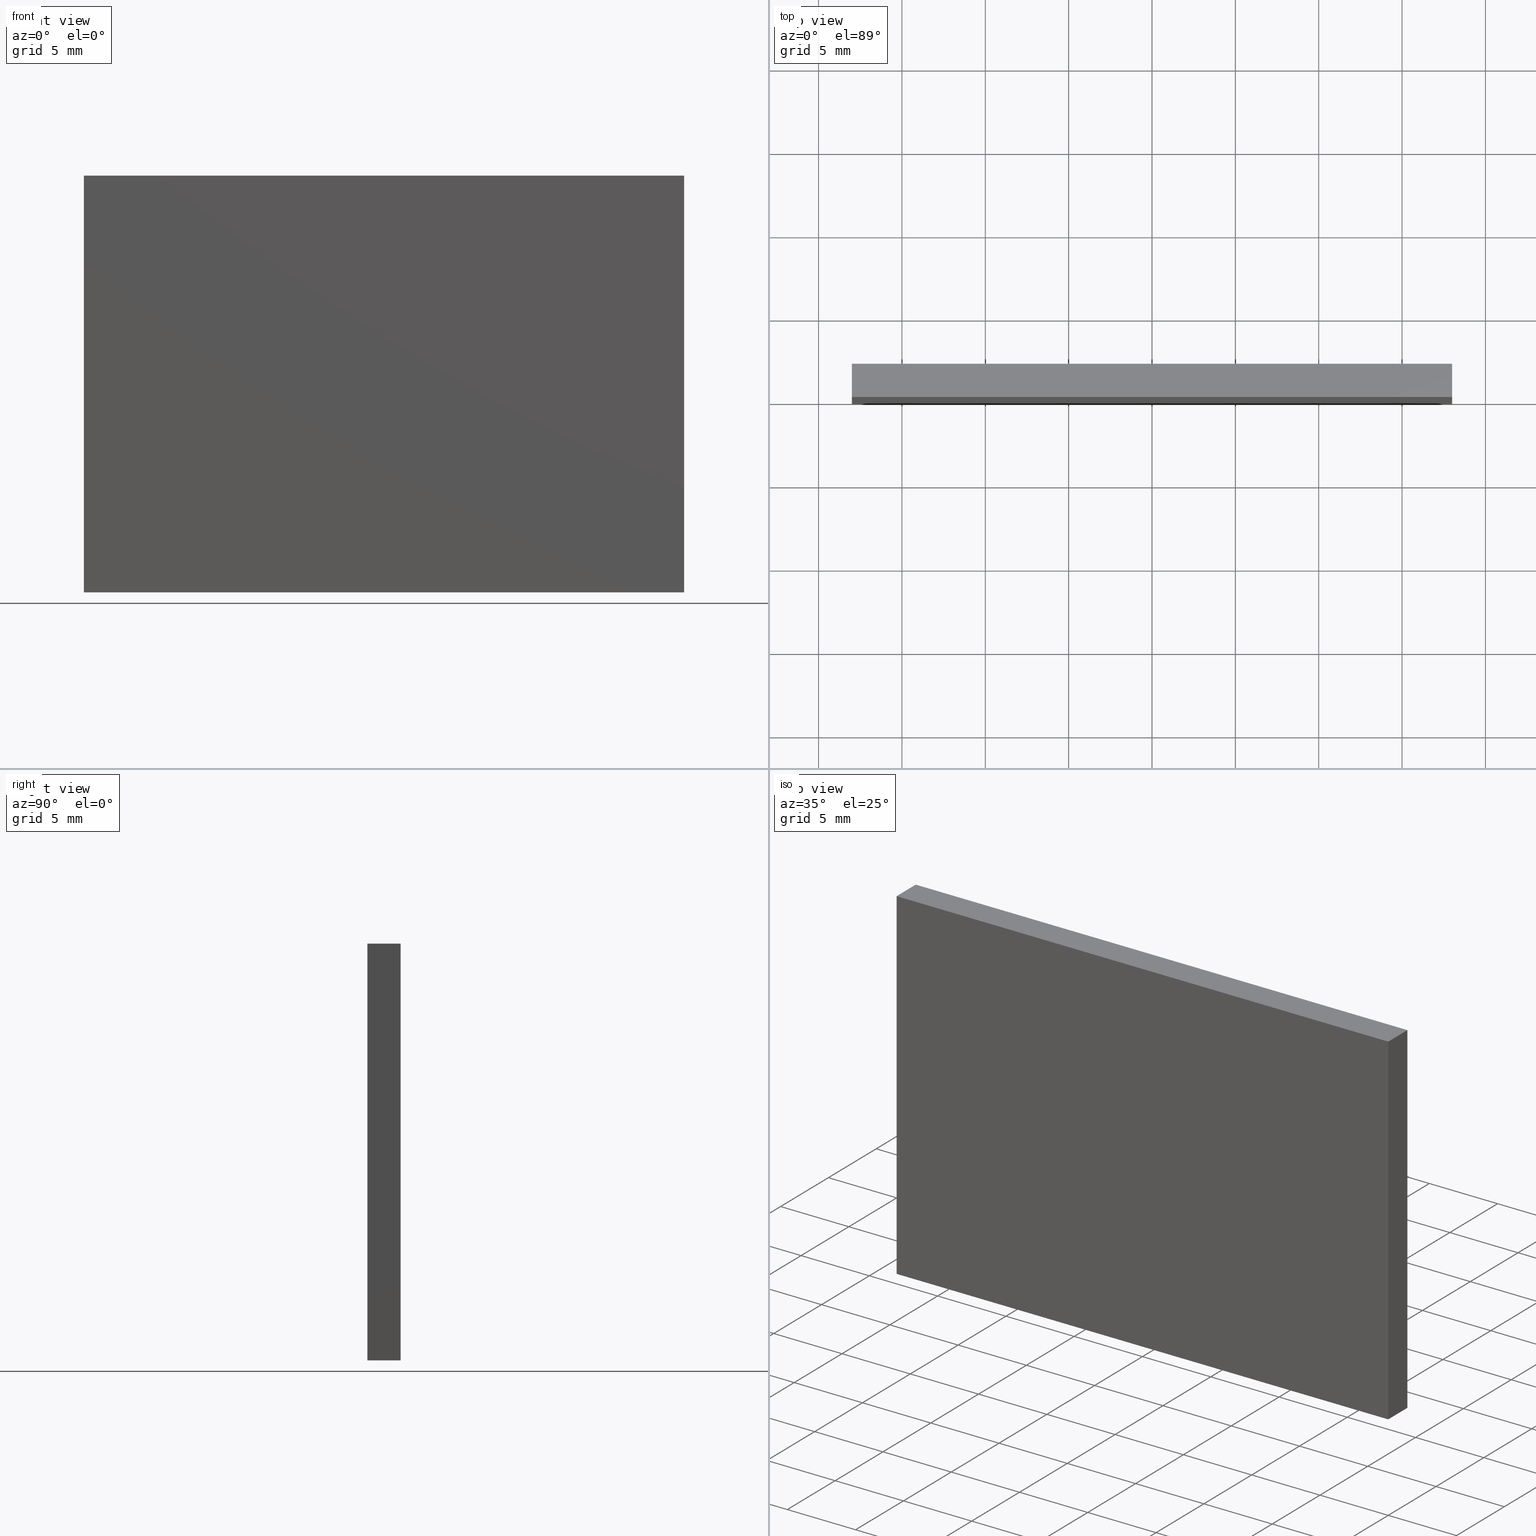
[diagram: canonical four-view strip — front | top / right | iso, engineering-drawing reading convention]
A machine part, canonical four-view strip (front | top / right | iso — engineering-drawing reading convention). The complete STEP part file that produces these views, byte-faithful:
ISO-10303-21;
HEADER;
FILE_DESCRIPTION (( 'STEP AP214' ),
    '1' );
FILE_NAME ('238567.STEP',
    '2019-08-01T02:56:56',
    ( 'user' ),
    ( '΢���й�' ),
    'SwSTEP 2.0',
    'SolidWorks 2016',
    '' );
FILE_SCHEMA (( 'AUTOMOTIVE_DESIGN' ));
ENDSEC;

DATA;
#1 = VECTOR ( 'NONE', #176, 1000.000000000000000 ) ;
#2 = LINE ( 'NONE', #80, #194 ) ;
#3 = EDGE_CURVE ( 'NONE', #185, #20, #189, .T. ) ;
#4 = FACE_OUTER_BOUND ( 'NONE', #90, .T. ) ;
#5 = AXIS2_PLACEMENT_3D ( 'NONE', #34, #13, #134 ) ;
#6 = DIRECTION ( 'NONE',  ( 0.0000000000000000000, 0.0000000000000000000, 1.000000000000000000 ) ) ;
#7 = ORIENTED_EDGE ( 'NONE', *, *, #48, .T. ) ;
#8 = VECTOR ( 'NONE', #115, 1000.000000000000000 ) ;
#9 =( LENGTH_UNIT ( ) NAMED_UNIT ( * ) SI_UNIT ( .MILLI., .METRE. ) );
#10 = CARTESIAN_POINT ( 'NONE',  ( 17.99999999999999600, 0.0000000000000000000, -12.49999999999999800 ) ) ;
#11 = ADVANCED_FACE ( 'NONE', ( #30 ), #172, .F. ) ;
#12 = CARTESIAN_POINT ( 'NONE',  ( -18.00000000000000400, 2.000000000000000000, 12.50000000000000200 ) ) ;
#13 = DIRECTION ( 'NONE',  ( 0.0000000000000000000, 1.000000000000000000, 0.0000000000000000000 ) ) ;
#14 = EDGE_LOOP ( 'NONE', ( #109, #139, #186, #150 ) ) ;
#15 = FACE_OUTER_BOUND ( 'NONE', #17, .T. ) ;
#16 =( GEOMETRIC_REPRESENTATION_CONTEXT ( 3 ) GLOBAL_UNCERTAINTY_ASSIGNED_CONTEXT ( ( #64 ) ) GLOBAL_UNIT_ASSIGNED_CONTEXT ( ( #136, #116, #29 ) ) REPRESENTATION_CONTEXT ( 'NONE', 'WORKASPACE' ) );
#17 = EDGE_LOOP ( 'NONE', ( #97, #35, #65, #167 ) ) ;
#18 = DIRECTION ( 'NONE',  ( 0.0000000000000000000, 0.0000000000000000000, 1.000000000000000000 ) ) ;
#19 =( LENGTH_UNIT ( ) NAMED_UNIT ( * ) SI_UNIT ( .MILLI., .METRE. ) );
#20 = VERTEX_POINT ( 'NONE', #130 ) ;
#21 = VECTOR ( 'NONE', #57, 1000.000000000000000 ) ;
#22 = SURFACE_SIDE_STYLE ('',( #177 ) ) ;
#23 = CARTESIAN_POINT ( 'NONE',  ( -18.00000000000000400, 2.000000000000000000, -12.49999999999999800 ) ) ;
#24 = VECTOR ( 'NONE', #193, 1000.000000000000000 ) ;
#25 = DIRECTION ( 'NONE',  ( 2.775557561562891400E-016, 0.0000000000000000000, 1.000000000000000000 ) ) ;
#26 = STYLED_ITEM ( 'NONE', ( #61 ), #28 ) ;
#27 = ORIENTED_EDGE ( 'NONE', *, *, #58, .T. ) ;
#28 = ADVANCED_BREP_SHAPE_REPRESENTATION ( '238567', ( #95, #42 ), #199 ) ;
#29 =( NAMED_UNIT ( * ) SI_UNIT ( $, .STERADIAN. ) SOLID_ANGLE_UNIT ( ) );
#30 = FACE_OUTER_BOUND ( 'NONE', #31, .T. ) ;
#31 = EDGE_LOOP ( 'NONE', ( #7, #93, #103, #180 ) ) ;
#32 = LINE ( 'NONE', #99, #1 ) ;
#33 = PRESENTATION_LAYER_ASSIGNMENT (  '', '', ( #26 ) ) ;
#34 = CARTESIAN_POINT ( 'NONE',  ( 0.0000000000000000000, 0.0000000000000000000, 0.0000000000000000000 ) ) ;
#35 = ORIENTED_EDGE ( 'NONE', *, *, #121, .F. ) ;
#36 = CARTESIAN_POINT ( 'NONE',  ( 18.00000000000000400, 2.000000000000000000, 12.50000000000000200 ) ) ;
#37 = DIRECTION ( 'NONE',  ( 0.0000000000000000000, 1.000000000000000000, 0.0000000000000000000 ) ) ;
#38 = CARTESIAN_POINT ( 'NONE',  ( 17.99999999999999600, 2.000000000000000000, -12.49999999999999800 ) ) ;
#39 = LINE ( 'NONE', #144, #78 ) ;
#40 = DIRECTION ( 'NONE',  ( -1.000000000000000000, 0.0000000000000000000, 2.775557561562891400E-016 ) ) ;
#41 = COLOUR_RGB ( '',1.000000000000000000, 1.000000000000000000, 1.000000000000000000 ) ;
#42 = AXIS2_PLACEMENT_3D ( 'NONE', #117, #18, #182 ) ;
#43 = EDGE_CURVE ( 'NONE', #68, #104, #161, .T. ) ;
#44 = FILL_AREA_STYLE ('',( #160 ) ) ;
#45 = MECHANICAL_DESIGN_GEOMETRIC_PRESENTATION_REPRESENTATION (  '', ( #26 ), #16 ) ;
#46 = PRODUCT_DEFINITION_CONTEXT ( 'detailed design', #165, 'design' ) ;
#47 = CLOSED_SHELL ( 'NONE', ( #11, #129, #83, #143, #71, #195 ) ) ;
#48 = EDGE_CURVE ( 'NONE', #135, #74, #32, .T. ) ;
#49 = EDGE_CURVE ( 'NONE', #74, #20, #107, .T. ) ;
#50 = DIRECTION ( 'NONE',  ( -1.000000000000000000, 0.0000000000000000000, -0.0000000000000000000 ) ) ;
#51 = FACE_OUTER_BOUND ( 'NONE', #174, .T. ) ;
#52 = DIRECTION ( 'NONE',  ( -0.0000000000000000000, -1.000000000000000000, -0.0000000000000000000 ) ) ;
#53 = VERTEX_POINT ( 'NONE', #128 ) ;
#54 = PRODUCT_DEFINITION ( 'δ֪', '', #63, #46 ) ;
#55 = CARTESIAN_POINT ( 'NONE',  ( 18.00000000000000400, 0.0000000000000000000, 12.50000000000000200 ) ) ;
#56 = DIRECTION ( 'NONE',  ( -1.000000000000000000, -0.0000000000000000000, -0.0000000000000000000 ) ) ;
#57 = DIRECTION ( 'NONE',  ( -1.000000000000000000, -0.0000000000000000000, -0.0000000000000000000 ) ) ;
#58 = EDGE_CURVE ( 'NONE', #20, #60, #39, .T. ) ;
#59 = CARTESIAN_POINT ( 'NONE',  ( -18.00000000000000400, 2.000000000000000000, -12.49999999999999800 ) ) ;
#60 = VERTEX_POINT ( 'NONE', #112 ) ;
#61 = PRESENTATION_STYLE_ASSIGNMENT (( #201 ) ) ;
#62 = ORIENTED_EDGE ( 'NONE', *, *, #43, .T. ) ;
#63 = PRODUCT_DEFINITION_FORMATION_WITH_SPECIFIED_SOURCE ( '�κ�', '', #198, .NOT_KNOWN. ) ;
#64 = UNCERTAINTY_MEASURE_WITH_UNIT (LENGTH_MEASURE( 1.000000000000000100E-005 ), #136, 'distance_accuracy_value', 'NONE');
#65 = ORIENTED_EDGE ( 'NONE', *, *, #58, .F. ) ;
#66 = EDGE_CURVE ( 'NONE', #104, #53, #77, .T. ) ;
#67 = CARTESIAN_POINT ( 'NONE',  ( -18.00000000000000400, 2.000000000000000000, -12.49999999999999800 ) ) ;
#68 = VERTEX_POINT ( 'NONE', #175 ) ;
#69 = DIRECTION ( 'NONE',  ( 1.000000000000000000, 0.0000000000000000000, 0.0000000000000000000 ) ) ;
#70 = DIRECTION ( 'NONE',  ( -2.775557561562891400E-016, -0.0000000000000000000, -1.000000000000000000 ) ) ;
#71 = ADVANCED_FACE ( 'NONE', ( #119 ), #159, .T. ) ;
#72 = AXIS2_PLACEMENT_3D ( 'NONE', #38, #40, #25 ) ;
#73 = VECTOR ( 'NONE', #102, 1000.000000000000000 ) ;
#74 = VERTEX_POINT ( 'NONE', #10 ) ;
#75 = PRODUCT_RELATED_PRODUCT_CATEGORY ( 'part', '', ( #198 ) ) ;
#76 = APPLICATION_PROTOCOL_DEFINITION ( 'draft international standard', 'automotive_design', 1998, #165 ) ;
#77 = LINE ( 'NONE', #82, #114 ) ;
#78 = VECTOR ( 'NONE', #98, 1000.000000000000000 ) ;
#79 = DIRECTION ( 'NONE',  ( 0.0000000000000000000, 0.0000000000000000000, 1.000000000000000000 ) ) ;
#80 = CARTESIAN_POINT ( 'NONE',  ( -18.00000000000000400, 2.000000000000000000, 12.50000000000000200 ) ) ;
#81 = EDGE_CURVE ( 'NONE', #53, #74, #137, .T. ) ;
#82 = CARTESIAN_POINT ( 'NONE',  ( 17.99999999999999600, 2.000000000000000000, -12.49999999999999800 ) ) ;
#83 = ADVANCED_FACE ( 'NONE', ( #4 ), #96, .F. ) ;
#84 = DIRECTION ( 'NONE',  ( 1.000000000000000000, 0.0000000000000000000, 0.0000000000000000000 ) ) ;
#85 = CARTESIAN_POINT ( 'NONE',  ( -18.00000000000000400, 2.000000000000000000, -12.49999999999999800 ) ) ;
#86 = LINE ( 'NONE', #138, #164 ) ;
#87 = PRODUCT_CONTEXT ( 'NONE', #166, 'mechanical' ) ;
#88 =( NAMED_UNIT ( * ) PLANE_ANGLE_UNIT ( ) SI_UNIT ( $, .RADIAN. ) );
#89 = ORIENTED_EDGE ( 'NONE', *, *, #181, .T. ) ;
#90 = EDGE_LOOP ( 'NONE', ( #27, #125, #200, #105 ) ) ;
#91 = ORIENTED_EDGE ( 'NONE', *, *, #43, .F. ) ;
#92 = DIRECTION ( 'NONE',  ( 1.000000000000000000, 0.0000000000000000000, -0.0000000000000000000 ) ) ;
#93 = ORIENTED_EDGE ( 'NONE', *, *, #81, .F. ) ;
#94 =( NAMED_UNIT ( * ) PLANE_ANGLE_UNIT ( ) SI_UNIT ( $, .RADIAN. ) );
#95 = MANIFOLD_SOLID_BREP ( '͹̨-����1', #47 ) ;
#96 = PLANE ( 'NONE',  #101 ) ;
#97 = ORIENTED_EDGE ( 'NONE', *, *, #48, .F. ) ;
#98 = DIRECTION ( 'NONE',  ( 0.0000000000000000000, 0.0000000000000000000, 1.000000000000000000 ) ) ;
#99 = CARTESIAN_POINT ( 'NONE',  ( 17.99999999999999600, 0.0000000000000000000, -12.49999999999999800 ) ) ;
#100 = COLOUR_RGB ( '',1.000000000000000000, 1.000000000000000000, 1.000000000000000000 ) ;
#101 = AXIS2_PLACEMENT_3D ( 'NONE', #23, #69, #156 ) ;
#102 = DIRECTION ( 'NONE',  ( -0.0000000000000000000, -1.000000000000000000, -0.0000000000000000000 ) ) ;
#103 = ORIENTED_EDGE ( 'NONE', *, *, #66, .F. ) ;
#104 = VERTEX_POINT ( 'NONE', #36 ) ;
#105 = ORIENTED_EDGE ( 'NONE', *, *, #3, .T. ) ;
#106 = PRESENTATION_LAYER_ASSIGNMENT (  '', '', ( #149 ) ) ;
#107 = LINE ( 'NONE', #196, #152 ) ;
#108 = PLANE ( 'NONE',  #162 ) ;
#109 = ORIENTED_EDGE ( 'NONE', *, *, #49, .T. ) ;
#110 = SURFACE_STYLE_USAGE ( .BOTH. , #22 ) ;
#111 = EDGE_CURVE ( 'NONE', #68, #60, #2, .T. ) ;
#112 = CARTESIAN_POINT ( 'NONE',  ( -18.00000000000000400, 0.0000000000000000000, 12.50000000000000200 ) ) ;
#113 = PLANE ( 'NONE',  #5 ) ;
#114 = VECTOR ( 'NONE', #70, 1000.000000000000000 ) ;
#115 = DIRECTION ( 'NONE',  ( -0.0000000000000000000, -1.000000000000000000, -0.0000000000000000000 ) ) ;
#116 =( NAMED_UNIT ( * ) PLANE_ANGLE_UNIT ( ) SI_UNIT ( $, .RADIAN. ) );
#117 = CARTESIAN_POINT ( 'NONE',  ( 0.0000000000000000000, 0.0000000000000000000, 0.0000000000000000000 ) ) ;
#118 = MECHANICAL_DESIGN_GEOMETRIC_PRESENTATION_REPRESENTATION (  '', ( #149 ), #131 ) ;
#119 = FACE_OUTER_BOUND ( 'NONE', #145, .T. ) ;
#120 = VECTOR ( 'NONE', #140, 1000.000000000000000 ) ;
#121 = EDGE_CURVE ( 'NONE', #60, #135, #163, .T. ) ;
#122 = SHAPE_DEFINITION_REPRESENTATION ( #154, #28 ) ;
#123 = UNCERTAINTY_MEASURE_WITH_UNIT (LENGTH_MEASURE( 1.000000000000000100E-005 ), #9, 'distance_accuracy_value', 'NONE');
#124 = CARTESIAN_POINT ( 'NONE',  ( -18.00000000000000400, 2.000000000000000000, -12.49999999999999800 ) ) ;
#125 = ORIENTED_EDGE ( 'NONE', *, *, #111, .F. ) ;
#126 = FILL_AREA_STYLE ('',( #173 ) ) ;
#127 = DIRECTION ( 'NONE',  ( 0.0000000000000000000, -0.0000000000000000000, 1.000000000000000000 ) ) ;
#128 = CARTESIAN_POINT ( 'NONE',  ( 17.99999999999999600, 2.000000000000000000, -12.49999999999999800 ) ) ;
#129 = ADVANCED_FACE ( 'NONE', ( #151 ), #108, .F. ) ;
#130 = CARTESIAN_POINT ( 'NONE',  ( -18.00000000000000400, 0.0000000000000000000, -12.49999999999999800 ) ) ;
#131 =( GEOMETRIC_REPRESENTATION_CONTEXT ( 3 ) GLOBAL_UNCERTAINTY_ASSIGNED_CONTEXT ( ( #123 ) ) GLOBAL_UNIT_ASSIGNED_CONTEXT ( ( #9, #94, #192 ) ) REPRESENTATION_CONTEXT ( 'NONE', 'WORKASPACE' ) );
#132 = ORIENTED_EDGE ( 'NONE', *, *, #146, .F. ) ;
#133 = LINE ( 'NONE', #85, #21 ) ;
#134 = DIRECTION ( 'NONE',  ( 0.0000000000000000000, -0.0000000000000000000, 1.000000000000000000 ) ) ;
#135 = VERTEX_POINT ( 'NONE', #55 ) ;
#136 =( LENGTH_UNIT ( ) NAMED_UNIT ( * ) SI_UNIT ( .MILLI., .METRE. ) );
#137 = LINE ( 'NONE', #142, #24 ) ;
#138 = CARTESIAN_POINT ( 'NONE',  ( -18.00000000000000400, 2.000000000000000000, -12.49999999999999800 ) ) ;
#139 = ORIENTED_EDGE ( 'NONE', *, *, #3, .F. ) ;
#140 = DIRECTION ( 'NONE',  ( 1.000000000000000000, 0.0000000000000000000, 0.0000000000000000000 ) ) ;
#141 = ORIENTED_EDGE ( 'NONE', *, *, #66, .T. ) ;
#142 = CARTESIAN_POINT ( 'NONE',  ( 17.99999999999999600, 2.000000000000000000, -12.49999999999999800 ) ) ;
#143 = ADVANCED_FACE ( 'NONE', ( #51 ), #190, .F. ) ;
#144 = CARTESIAN_POINT ( 'NONE',  ( -18.00000000000000400, 0.0000000000000000000, -12.49999999999999800 ) ) ;
#145 = EDGE_LOOP ( 'NONE', ( #141, #89, #170, #62 ) ) ;
#146 = EDGE_CURVE ( 'NONE', #104, #135, #168, .T. ) ;
#147 = SURFACE_SIDE_STYLE ('',( #178 ) ) ;
#148 = VECTOR ( 'NONE', #84, 1000.000000000000000 ) ;
#149 = STYLED_ITEM ( 'NONE', ( #187 ), #95 ) ;
#150 = ORIENTED_EDGE ( 'NONE', *, *, #81, .T. ) ;
#151 = FACE_OUTER_BOUND ( 'NONE', #14, .T. ) ;
#152 = VECTOR ( 'NONE', #56, 1000.000000000000000 ) ;
#153 = DIRECTION ( 'NONE',  ( 0.0000000000000000000, 0.0000000000000000000, -1.000000000000000000 ) ) ;
#154 = PRODUCT_DEFINITION_SHAPE ( 'NONE', 'NONE',  #54 ) ;
#155 = CARTESIAN_POINT ( 'NONE',  ( -18.00000000000000400, 0.0000000000000000000, 12.50000000000000200 ) ) ;
#156 = DIRECTION ( 'NONE',  ( 0.0000000000000000000, 0.0000000000000000000, -1.000000000000000000 ) ) ;
#157 = EDGE_CURVE ( 'NONE', #185, #68, #86, .T. ) ;
#158 = CARTESIAN_POINT ( 'NONE',  ( 0.0000000000000000000, 2.000000000000000000, 0.0000000000000000000 ) ) ;
#159 = PLANE ( 'NONE',  #191 ) ;
#160 = FILL_AREA_STYLE_COLOUR ( '', #41 ) ;
#161 = LINE ( 'NONE', #12, #148 ) ;
#162 = AXIS2_PLACEMENT_3D ( 'NONE', #67, #6, #92 ) ;
#163 = LINE ( 'NONE', #155, #120 ) ;
#164 = VECTOR ( 'NONE', #79, 1000.000000000000000 ) ;
#165 = APPLICATION_CONTEXT ( 'automotive_design' ) ;
#166 = APPLICATION_CONTEXT ( 'automotive_design' ) ;
#167 = ORIENTED_EDGE ( 'NONE', *, *, #49, .F. ) ;
#168 = LINE ( 'NONE', #197, #8 ) ;
#169 = ORIENTED_EDGE ( 'NONE', *, *, #111, .T. ) ;
#170 = ORIENTED_EDGE ( 'NONE', *, *, #157, .T. ) ;
#171 = CARTESIAN_POINT ( 'NONE',  ( -18.00000000000000400, 2.000000000000000000, 12.50000000000000200 ) ) ;
#172 = PLANE ( 'NONE',  #72 ) ;
#173 = FILL_AREA_STYLE_COLOUR ( '', #100 ) ;
#174 = EDGE_LOOP ( 'NONE', ( #179, #132, #91, #169 ) ) ;
#175 = CARTESIAN_POINT ( 'NONE',  ( -18.00000000000000400, 2.000000000000000000, 12.50000000000000200 ) ) ;
#176 = DIRECTION ( 'NONE',  ( -2.775557561562891400E-016, -0.0000000000000000000, -1.000000000000000000 ) ) ;
#177 = SURFACE_STYLE_FILL_AREA ( #126 ) ;
#178 = SURFACE_STYLE_FILL_AREA ( #44 ) ;
#179 = ORIENTED_EDGE ( 'NONE', *, *, #121, .T. ) ;
#180 = ORIENTED_EDGE ( 'NONE', *, *, #146, .T. ) ;
#181 = EDGE_CURVE ( 'NONE', #53, #185, #133, .T. ) ;
#182 = DIRECTION ( 'NONE',  ( 1.000000000000000000, 0.0000000000000000000, 0.0000000000000000000 ) ) ;
#183 = APPLICATION_PROTOCOL_DEFINITION ( 'draft international standard', 'automotive_design', 1998, #166 ) ;
#184 = AXIS2_PLACEMENT_3D ( 'NONE', #171, #153, #50 ) ;
#185 = VERTEX_POINT ( 'NONE', #124 ) ;
#186 = ORIENTED_EDGE ( 'NONE', *, *, #181, .F. ) ;
#187 = PRESENTATION_STYLE_ASSIGNMENT (( #110 ) ) ;
#188 = UNCERTAINTY_MEASURE_WITH_UNIT (LENGTH_MEASURE( 1.000000000000000100E-005 ), #19, 'distance_accuracy_value', 'NONE');
#189 = LINE ( 'NONE', #59, #73 ) ;
#190 = PLANE ( 'NONE',  #184 ) ;
#191 = AXIS2_PLACEMENT_3D ( 'NONE', #158, #37, #127 ) ;
#192 =( NAMED_UNIT ( * ) SI_UNIT ( $, .STERADIAN. ) SOLID_ANGLE_UNIT ( ) );
#193 = DIRECTION ( 'NONE',  ( -0.0000000000000000000, -1.000000000000000000, -0.0000000000000000000 ) ) ;
#194 = VECTOR ( 'NONE', #52, 1000.000000000000000 ) ;
#195 = ADVANCED_FACE ( 'NONE', ( #15 ), #113, .F. ) ;
#196 = CARTESIAN_POINT ( 'NONE',  ( -18.00000000000000400, 0.0000000000000000000, -12.49999999999999800 ) ) ;
#197 = CARTESIAN_POINT ( 'NONE',  ( 18.00000000000000400, 2.000000000000000000, 12.50000000000000200 ) ) ;
#198 = PRODUCT ( '238567', '238567', '', ( #87 ) ) ;
#199 =( GEOMETRIC_REPRESENTATION_CONTEXT ( 3 ) GLOBAL_UNCERTAINTY_ASSIGNED_CONTEXT ( ( #188 ) ) GLOBAL_UNIT_ASSIGNED_CONTEXT ( ( #19, #88, #202 ) ) REPRESENTATION_CONTEXT ( 'NONE', 'WORKASPACE' ) );
#200 = ORIENTED_EDGE ( 'NONE', *, *, #157, .F. ) ;
#201 = SURFACE_STYLE_USAGE ( .BOTH. , #147 ) ;
#202 =( NAMED_UNIT ( * ) SI_UNIT ( $, .STERADIAN. ) SOLID_ANGLE_UNIT ( ) );
ENDSEC;
END-ISO-10303-21;
